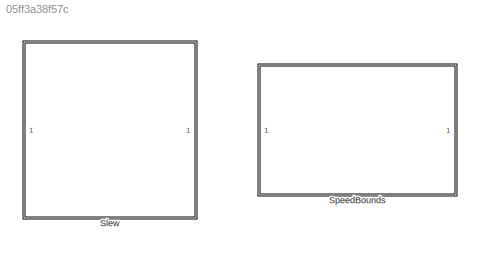
MODEL slx_05ff3a38f57c
KIND library
CONFIG AbsTol = auto
CONFIG EnableMultiTasking = off
CONFIG FixedStep = auto
CONFIG MaxStep = auto
CONFIG MinStep = auto
CONFIG RelTol = 1e-3
CONFIG SampleTimeConstraint = Unconstrained
CONFIG SolverName = VariableStepAuto
CONFIG StartTime = 0.0
CONFIG StopTime = 10.0
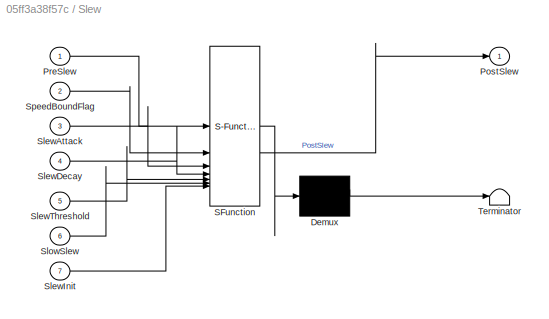
BLOCK [SubSystem] Slew
  ErrorFcn = Stateflow.Translate.translate
  PermitHierarchicalResolution = ExplicitOnly
  SFBlockType = MATLAB Function
  TreatAsAtomicUnit = on
BLOCK [Demux] Slew/ Demux 
  Outputs = 1
BLOCK [S-Function] Slew/ SFunction 
  EnableBusSupport = off
  FunctionName = sf_sfun
  PortCounts = [7 2]
  SFcnIsStateOwnerBlock = off
  SFunctionDeploymentMode = off
  Tag = Stateflow S-Function 1
BLOCK [Terminator] Slew/ Terminator 
BLOCK [Outport] Slew/PostSlew
  VectorParamsAs1DForOutWhenUnconnected = off
BLOCK [Inport] Slew/PreSlew
BLOCK [Inport] Slew/SlewAttack
  Port = 3
BLOCK [Inport] Slew/SlewDecay
  Port = 4
BLOCK [Inport] Slew/SlewInit
  Port = 7
BLOCK [Inport] Slew/SlewThreshold
  Port = 5
BLOCK [Inport] Slew/SlowSlew
  Port = 6
BLOCK [Inport] Slew/SpeedBoundFlag
  Port = 2
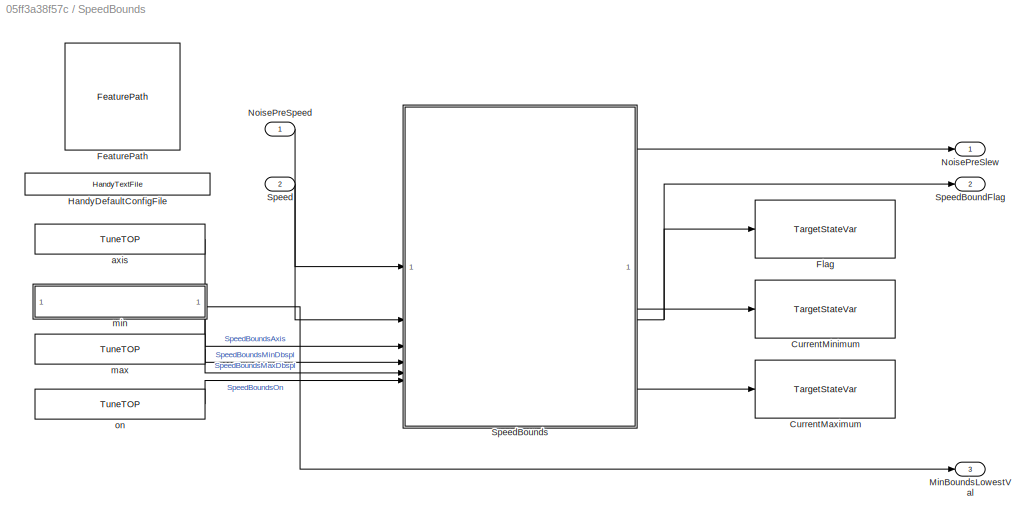
BLOCK [SubSystem] SpeedBounds
BLOCK [Reference] SpeedBounds/CurrentMaximum   REF=StateVar/TargetStateVar
  SourceBlock = StateVar/TargetStateVar
  SourceProductName = Bose Talaria
  SourceType = Talaria Target State Variable
BLOCK [Reference] SpeedBounds/CurrentMinimum  REF=StateVar/TargetStateVar
  SourceBlock = StateVar/TargetStateVar
  SourceProductName = Bose Talaria
  SourceType = Talaria Target State Variable
BLOCK [Reference] SpeedBounds/FeaturePath  REF=FeaturePath/FeaturePath
  SourceBlock = FeaturePath/FeaturePath
  SourceProductName = Bose Talaria
  SourceType = Talaria Feature Path
BLOCK [Reference] SpeedBounds/Flag  REF=StateVar/TargetStateVar
  SourceBlock = StateVar/TargetStateVar
  SourceProductName = Bose Talaria
  SourceType = Talaria Target State Variable
BLOCK [Reference] SpeedBounds/HandyDefaultConfigFile  REF=HandyTextFile/HandyTextFile
  SourceBlock = HandyTextFile/HandyTextFile
  SourceProductName = Bose Talaria
  SourceType = Talaria Handy Text File
BLOCK [Outport] SpeedBounds/MinBoundsLowestVal
  Port = 3
BLOCK [Outport] SpeedBounds/NoisePreSlew
  VectorParamsAs1DForOutWhenUnconnected = off
BLOCK [Inport] SpeedBounds/NoisePreSpeed
  NameLocation = top
BLOCK [Inport] SpeedBounds/Speed
  NameLocation = top
  Port = 2
BLOCK [Outport] SpeedBounds/SpeedBoundFlag
  Port = 2
  VectorParamsAs1DForOutWhenUnconnected = off
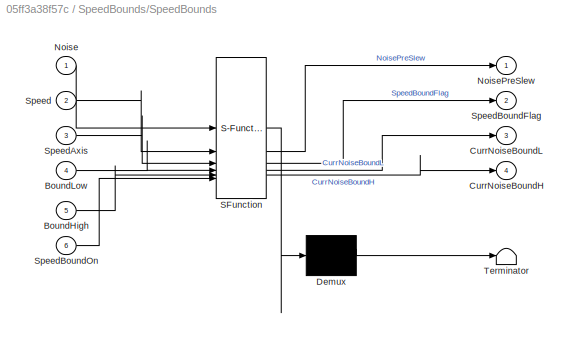
BLOCK [SubSystem] SpeedBounds/SpeedBounds
  ErrorFcn = Stateflow.Translate.translate
  NameLocation = top
  PermitHierarchicalResolution = ExplicitOnly
  SFBlockType = MATLAB Function
  TreatAsAtomicUnit = on
BLOCK [Demux] SpeedBounds/SpeedBounds/ Demux 
  Outputs = 1
BLOCK [S-Function] SpeedBounds/SpeedBounds/ SFunction 
  EnableBusSupport = off
  FunctionName = sf_sfun
  PortCounts = [6 5]
  SFcnIsStateOwnerBlock = off
  SFunctionDeploymentMode = off
  Tag = Stateflow S-Function 3
BLOCK [Terminator] SpeedBounds/SpeedBounds/ Terminator 
BLOCK [Inport] SpeedBounds/SpeedBounds/BoundHigh
  Port = 5
BLOCK [Inport] SpeedBounds/SpeedBounds/BoundLow
  Port = 4
BLOCK [Outport] SpeedBounds/SpeedBounds/CurrNoiseBoundH
  Port = 4
  VectorParamsAs1DForOutWhenUnconnected = off
BLOCK [Outport] SpeedBounds/SpeedBounds/CurrNoiseBoundL
  Port = 3
  VectorParamsAs1DForOutWhenUnconnected = off
BLOCK [Inport] SpeedBounds/SpeedBounds/Noise
BLOCK [Outport] SpeedBounds/SpeedBounds/NoisePreSlew
  VectorParamsAs1DForOutWhenUnconnected = off
BLOCK [Inport] SpeedBounds/SpeedBounds/Speed
  Port = 2
BLOCK [Inport] SpeedBounds/SpeedBounds/SpeedAxis
  Port = 3
BLOCK [Outport] SpeedBounds/SpeedBounds/SpeedBoundFlag
  Port = 2
  VectorParamsAs1DForOutWhenUnconnected = off
BLOCK [Inport] SpeedBounds/SpeedBounds/SpeedBoundOn
  Port = 6
BLOCK [Reference] SpeedBounds/axis  REF=TuneVar/TuneTOP
  SourceBlock = TuneVar/TuneTOP
  SourceProductName = Bose Talaria
  SourceType = Talaria Trivial Tune TOP
BLOCK [Reference] SpeedBounds/max  REF=TuneVar/TuneTOP
  SourceBlock = TuneVar/TuneTOP
  SourceProductName = Bose Talaria
  SourceType = Talaria Trivial Tune TOP
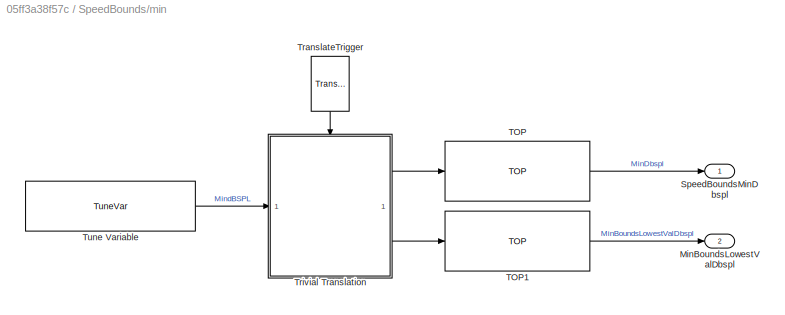
BLOCK [SubSystem] SpeedBounds/min
BLOCK [Outport] SpeedBounds/min/MinBoundsLowestValDbspl
  Port = 2
BLOCK [Outport] SpeedBounds/min/SpeedBoundsMinDbspl
  VectorParamsAs1DForOutWhenUnconnected = off
BLOCK [Reference] SpeedBounds/min/TOP  REF=TOP/TOP
  SourceBlock = TOP/TOP
  SourceProductName = Bose Talaria
  SourceType = Talaria Target Overlay Parameter
BLOCK [Reference] SpeedBounds/min/TOP1  REF=TOP/TOP
  SourceBlock = TOP/TOP
  SourceProductName = Bose Talaria
  SourceType = Talaria Target Overlay Parameter
BLOCK [Reference] SpeedBounds/min/TranslateTrigger  REF=TuneVar/TranslateTrigger
  NameLocation = left
  SourceBlock = TuneVar/TranslateTrigger
  SourceProductName = Bose Talaria
  SourceType = Talaria Translate Trigger
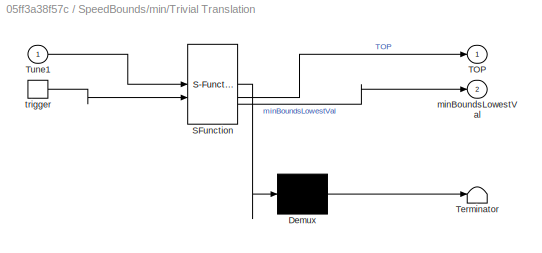
BLOCK [SubSystem] SpeedBounds/min/Trivial Translation
  ErrorFcn = Stateflow.Translate.translate
  PermitHierarchicalResolution = ExplicitOnly
  SFBlockType = MATLAB Function
  TreatAsAtomicUnit = on
BLOCK [Demux] SpeedBounds/min/Trivial Translation/ Demux 
  Outputs = 1
BLOCK [S-Function] SpeedBounds/min/Trivial Translation/ SFunction 
  EnableBusSupport = off
  FunctionName = sf_sfun
  PortCounts = [2 3]
  SFcnIsStateOwnerBlock = off
  SFunctionDeploymentMode = off
  Tag = Stateflow S-Function 5
BLOCK [Terminator] SpeedBounds/min/Trivial Translation/ Terminator 
BLOCK [Outport] SpeedBounds/min/Trivial Translation/TOP
  VectorParamsAs1DForOutWhenUnconnected = off
BLOCK [Inport] SpeedBounds/min/Trivial Translation/Tune1
BLOCK [Outport] SpeedBounds/min/Trivial Translation/minBoundsLowestVal
  Port = 2
BLOCK [TriggerPort] SpeedBounds/min/Trivial Translation/trigger
  ShowOutputPort = on
  StatesWhenEnabling = held
  TriggerType = function-call
  VariantControl = Variant
BLOCK [Reference] SpeedBounds/min/Tune Variable  REF=TuneVar/TuneVar
  SourceBlock = TuneVar/TuneVar
  SourceProductName = Bose Talaria
  SourceType = Talaria Tune Variable
BLOCK [Reference] SpeedBounds/on  REF=TuneVar/TuneTOP
  SourceBlock = TuneVar/TuneTOP
  SourceProductName = Bose Talaria
  SourceType = Talaria Trivial Tune TOP
LINE SpeedBounds/NoisePreSpeed:1 -> SpeedBounds/SpeedBounds:1
LINE SpeedBounds/Speed:1 -> SpeedBounds/SpeedBounds:2
LINE SpeedBounds/SpeedBounds:1 -> SpeedBounds/NoisePreSlew:1
NET SpeedBounds/SpeedBounds:2 -> SpeedBounds/Flag:1, SpeedBounds/SpeedBoundFlag:1
LINE SpeedBounds/SpeedBounds:3 -> SpeedBounds/CurrentMinimum:1
LINE SpeedBounds/SpeedBounds:4 -> SpeedBounds/CurrentMaximum :1
LINE SpeedBounds/axis:1 -> SpeedBounds/SpeedBounds:3
LINE SpeedBounds/max:1 -> SpeedBounds/SpeedBounds:5
LINE SpeedBounds/min/TOP1:1 -> SpeedBounds/min/MinBoundsLowestValDbspl:1
LINE SpeedBounds/min/TOP:1 -> SpeedBounds/min/SpeedBoundsMinDbspl:1
LINE SpeedBounds/min/TranslateTrigger:1 -> SpeedBounds/min/Trivial Translation:trigger
LINE SpeedBounds/min/Trivial Translation:1 -> SpeedBounds/min/TOP:1
LINE SpeedBounds/min/Trivial Translation:2 -> SpeedBounds/min/TOP1:1
LINE SpeedBounds/min/Tune Variable:1 -> SpeedBounds/min/Trivial Translation:1
LINE SpeedBounds/min:1 -> SpeedBounds/SpeedBounds:4
LINE SpeedBounds/min:2 -> SpeedBounds/MinBoundsLowestVal:1
LINE SpeedBounds/on:1 -> SpeedBounds/SpeedBounds:6
note: NET lines group one-source signal fan-out (src -> all destinations, sorted); 1:1 wires keep LINE
CHART Slew states=1 transitions=1
  STATE_LABEL 'eML_blk_kernel()'
  STATE_LABEL 'SCRIPT:\nfunction PostSlew = Slew(PreSlew, SpeedBoundFlag, ...\n\tSlewAttack, SlewDecay, SlewThreshold, SlowSlew, SlewInit)\n\t\npersistent PrevChange PrevDelta PrevPostSlew;\nif isempty(PrevChange); PrevChange = single(0);  end\nif isempty(PrevDelta); PrevDelta = single(0);  end\nif isempty(PrevPostSlew); PrevPostSlew = single(SlewInit);  end\n\nDelta = PreSlew - PrevPostSlew;\n\nif Delta > 0                 ...<+1035ch>'
CHART SpeedBounds/SpeedBounds states=1 transitions=1
  STATE_LABEL 'eML_blk_kernel()'
  STATE_LABEL 'SCRIPT:\nfunction [NoisePreSlew, SpeedBoundFlag, CurrNoiseBoundL, CurrNoiseBoundH] ...\n    = SpeedBounds(Noise, Speed, ...\n        SpeedAxis, BoundLow, BoundHigh, SpeedBoundOn)\n% Apply speed bounds to the noise\n% Set up speed bound flag for slewing\n\nif SpeedBoundOn > 0\n    % limit input speed to the range of indices in the table\n    Speed = min(Speed, SpeedAxis(end));\n    Speed = max(Speed, SpeedAx...<+643ch>'
CHART SpeedBounds/min/Trivial Translation states=1 transitions=1
  STATE_LABEL 'eML_blk_kernel()'
  STATE_LABEL 'SCRIPT:\nfunction [TOP, minBoundsLowestVal]  = fcn(Tune1)\n%#codegen\n\nTOP = Tune1.Value;\nminBoundsLowestVal = min(Tune1.Value);'
CHART  states=0 transitions=0
CHART  states=0 transitions=0
CHART  states=0 transitions=0
